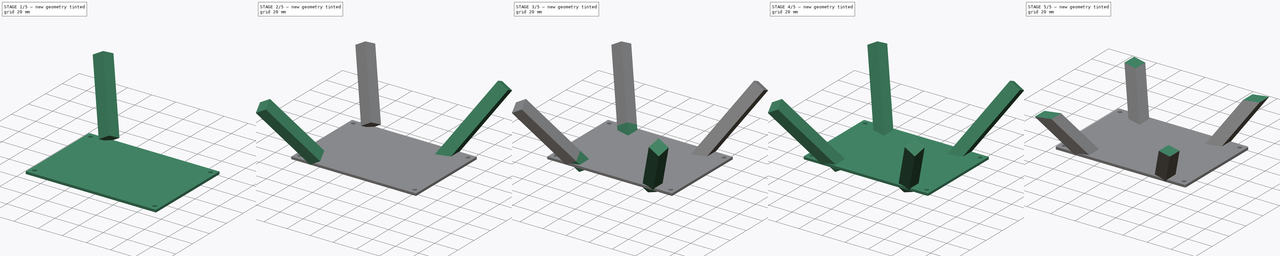
[diagram: build sequence overview — one tinted view per stage of 5, left to right]
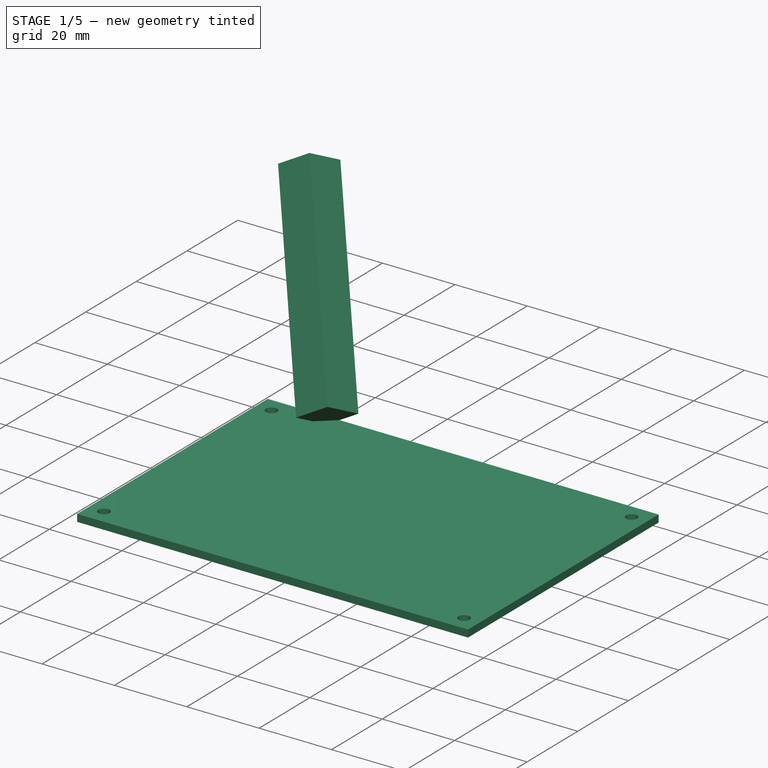
[diagram: stage 1 of 5 — iso view after this stage's code; geometry added in this stage tinted green]
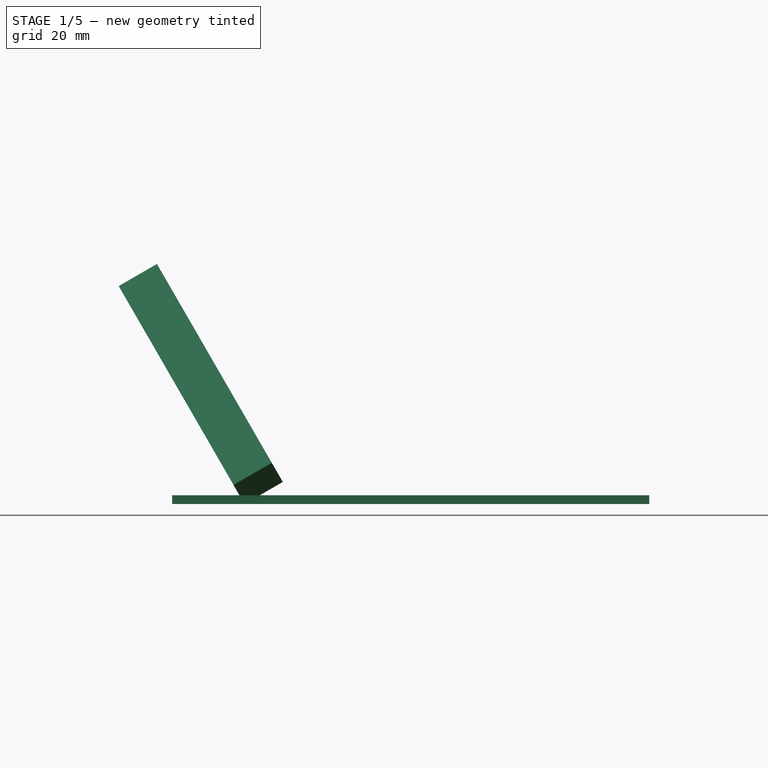
[diagram: stage 1 of 5 — front view after this stage's code; geometry added in this stage tinted green]
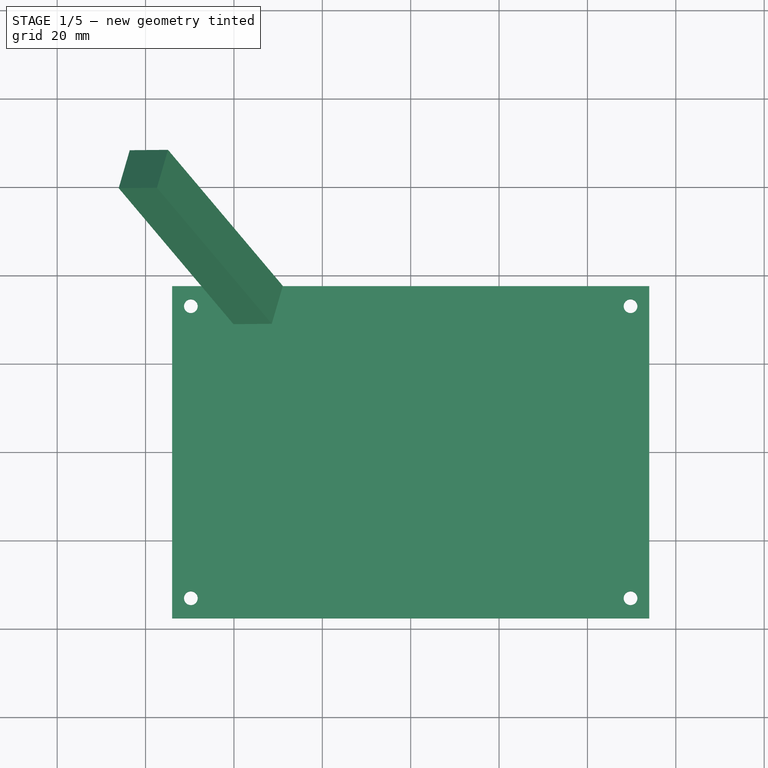
[diagram: stage 1 of 5 — top view after this stage's code; geometry added in this stage tinted green]
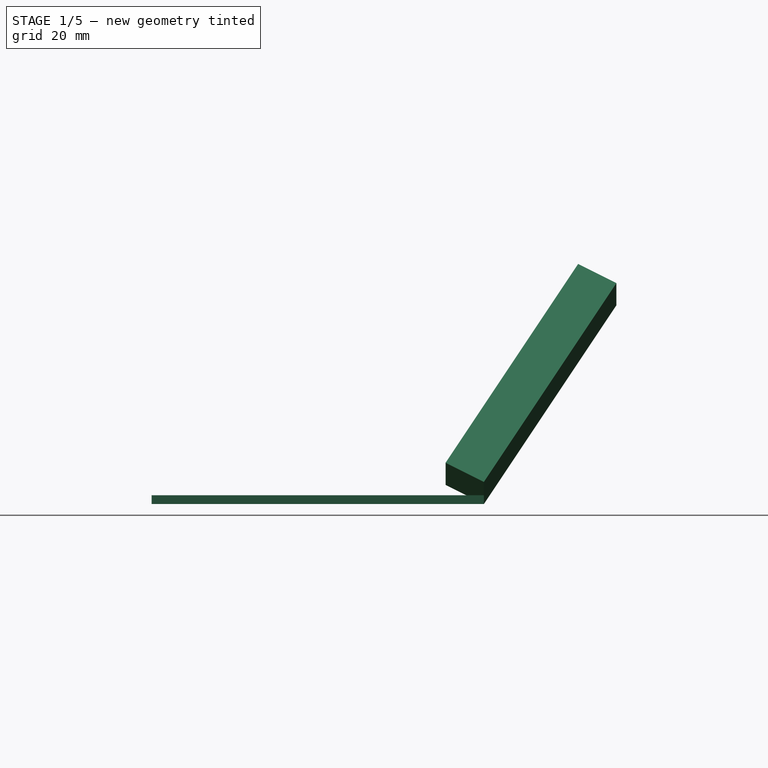
[diagram: stage 1 of 5 — right view after this stage's code; geometry added in this stage tinted green]
FCSTD DOCUMENT  (FreeCAD 0.19R24267 +99 (Git))
Label: LowerPiMount
License: All rights reserved
LicenseURL: http://en.wikipedia.org/wiki/All_rights_reserved
objects: PartDesign::Pad×7, Sketcher::SketchObject×4, PartDesign::Fillet×4, PartDesign::Mirrored×2, PartDesign::SubtractiveBox×2, Spreadsheet::Sheet×1, PartDesign::Pocket×1, PartDesign::Body×1
note: 35 computed .brp shape members not serialized (recipe doc carries the construction recipe); baked Part::Feature solids carry a one-line shape summary decoded from their .brp

FEATURE [Spreadsheet::Sheet] Spreadsheet
  cells = A2=lengthout; B2(lengthout)=108; A3=widthout; B3(widthout)=75.2; A4=widthin; B4(widthin)=57; A5=lenghtin; B5(lenghtin)=91; A7=baseheight; B7(baseheight)=2; A8=screwholes; B8(screwholes)=3.1; A10=support; B10(support)=10; A11=heightsupport; B11(heightsupport)=30; A12=anglesupport; B12(anglesupport)=30
FEATURE [Sketcher::SketchObject] Sketch
  FullyConstrained = true
  MapMode = 5
  Support = -> [XY_Plane]
  expr: Constraints[11] = Spreadsheet.lengthout / 2
  expr: Constraints[10] = Spreadsheet.widthout / 2
  expr: Constraints[9] = Spreadsheet.widthout
  expr: Constraints[8] = Spreadsheet.lengthout
  sketch-geometry (4):
    g0: LineSegment StartX=-54 StartY=37.6 StartZ=0 EndX=54 EndY=37.6 EndZ=0
    g1: LineSegment StartX=54 StartY=37.6 StartZ=0 EndX=54 EndY=-37.6 EndZ=0
    g2: LineSegment StartX=54 StartY=-37.6 StartZ=0 EndX=-54 EndY=-37.6 EndZ=0
    g3: LineSegment StartX=-54 StartY=-37.6 StartZ=0 EndX=-54 EndY=37.6 EndZ=0
  constraints (12):
    c: Coincident(g0,g1)
    c: Coincident(g1,g2)
    c: Coincident(g2,g3)
    c: Coincident(g3,g0)
    c: Horizontal(g0)
    c: Horizontal(g2)
    c: Vertical(g1)
    c: Vertical(g3)
    c: DistanceX(g0,g0) = 108
    c: DistanceY(g3,g3) = 75.2
    c: DistanceY(g2,g-1) = 37.6
    c: DistanceX(g0,g-1) = 54
FEATURE [PartDesign::Pad] Pad
  Direction = (1,1,1)
  Length = 2
  Length2 = 100
  Profile = -> Sketch
  Type = 0
  expr: Length = Spreadsheet.baseheight
FEATURE [Sketcher::SketchObject] Sketch001
  FullyConstrained = true
  MapMode = 5
  Placement = pos=(0,0,2) rot=(0,0,1;0rad)
  Support = -> [Pad]
  expr: Constraints[11] = Spreadsheet.widthin / 2 + (Spreadsheet.widthout - Spreadsheet.widthin) / 4
  expr: Constraints[9] = Spreadsheet.widthin / 2 + (Spreadsheet.widthout - Spreadsheet.widthin) / 4
  expr: Constraints[8] = Spreadsheet.widthin / 2 + (Spreadsheet.widthout - Spreadsheet.widthin) / 4
  expr: Constraints[7] = Spreadsheet.lenghtin / 2 + (Spreadsheet.lengthout - Spreadsheet.lenghtin) / 4
  expr: Constraints[6] = Spreadsheet.lenghtin / 2 + (Spreadsheet.lengthout - Spreadsheet.lenghtin) / 4
  expr: Constraints[4] = Spreadsheet.lenghtin / 2 + (Spreadsheet.lengthout - Spreadsheet.lenghtin) / 4
  expr: Constraints[3] = Spreadsheet.screwholes / 2
  expr: Constraints[10] = Spreadsheet.widthin / 2 + (Spreadsheet.widthout - Spreadsheet.widthin) / 4
  expr: Constraints[5] = Spreadsheet.lenghtin / 2 + (Spreadsheet.lengthout - Spreadsheet.lenghtin) / 4
  expr: Constraints[2] = Spreadsheet.screwholes / 2
  expr: Constraints[1] = Spreadsheet.screwholes / 2
  expr: Constraints[0] = Spreadsheet.screwholes / 2
  sketch-geometry (4):
    g0: Circle CenterX=-49.75 CenterY=33.05 CenterZ=0 NormalX=0 NormalY=0 NormalZ=1 AngleXU=0 Radius=1.55
    g1: Circle CenterX=49.75 CenterY=33.05 CenterZ=0 NormalX=0 NormalY=0 NormalZ=1 AngleXU=0 Radius=1.55
    g2: Circle CenterX=49.75 CenterY=-33.05 CenterZ=0 NormalX=0 NormalY=0 NormalZ=1 AngleXU=0 Radius=1.55
    g3: Circle CenterX=-49.75 CenterY=-33.05 CenterZ=0 NormalX=0 NormalY=0 NormalZ=1 AngleXU=0 Radius=1.55
  constraints (12):
    c: Radius(g1) = 1.55
    c: Radius(g2) = 1.55
    c: Radius(g3) = 1.55
    c: Radius(g0) = 1.55
    c: DistanceX(g-1,g1) = 49.75
    c: DistanceX(g-1,g2) = 49.75
    c: DistanceX(g3,g-1) = 49.75
    c: DistanceX(g0,g-1) = 49.75
    c: DistanceY(g-1,g0) = 33.05
    c: DistanceY(g-1,g1) = 33.05
    c: DistanceY(g2,g-1) = 33.05
    c: DistanceY(g3,g-1) = 33.05
FEATURE [PartDesign::Pocket] Pocket
  BaseFeature = -> Pad
  Length = 2
  Length2 = 100
  Profile = -> Sketch001
  Type = 0
  expr: Length = Spreadsheet.baseheight
FEATURE [Sketcher::SketchObject] Sketch002
  AttachmentOffset = pos=(-14.4374,5.03744,33.0813) rot=(-0.694747,-0.694747,-0.186157;0.7362rad)
  FullyConstrained = true
  MapMode = 5
  Placement = pos=(-14.4374,5.03744,35.0813) rot=(-0.694747,-0.694747,-0.186157;0.7362rad)
  Support = -> [Pocket]
  expr: Constraints[8] = Spreadsheet.widthout / 2
  expr: Constraints[9] = Spreadsheet.widthout / 2
  expr: Constraints[10] = Spreadsheet.support
  expr: Constraints[11] = Spreadsheet.support
  expr: .AttachmentOffset.Rotation.Roll = -Spreadsheet.anglesupport
  expr: .AttachmentOffset.Rotation.Pitch = -Spreadsheet.anglesupport
  sketch-geometry (4):
    g0: LineSegment StartX=-37.6 StartY=37.6 StartZ=0 EndX=-27.6 EndY=37.6 EndZ=0
    g1: LineSegment StartX=-27.6 StartY=37.6 StartZ=0 EndX=-27.6 EndY=27.6 EndZ=0
    g2: LineSegment StartX=-27.6 StartY=27.6 StartZ=0 EndX=-37.6 EndY=27.6 EndZ=0
    g3: LineSegment StartX=-37.6 StartY=27.6 StartZ=0 EndX=-37.6 EndY=37.6 EndZ=0
  constraints (12):
    c: Coincident(g0,g1)
    c: Coincident(g1,g2)
    c: Coincident(g2,g3)
    c: Coincident(g3,g0)
    c: Horizontal(g0)
    c: Horizontal(g2)
    c: Vertical(g1)
    c: Vertical(g3)
    c: DistanceX(g0,g-1) = 37.6
    c: DistanceY(g-1,g0) = 37.6
    c: DistanceX(g0,g0) = 10
    c: DistanceY(g1,g1) = 10
FEATURE [PartDesign::Pad] Pad001
  BaseFeature = -> Pocket
  Direction = (1,1,1)
  Length = 60
  Length2 = 100
  Profile = -> Sketch002
  Type = 0
  expr: Length = Spreadsheet.heightsupport * 2
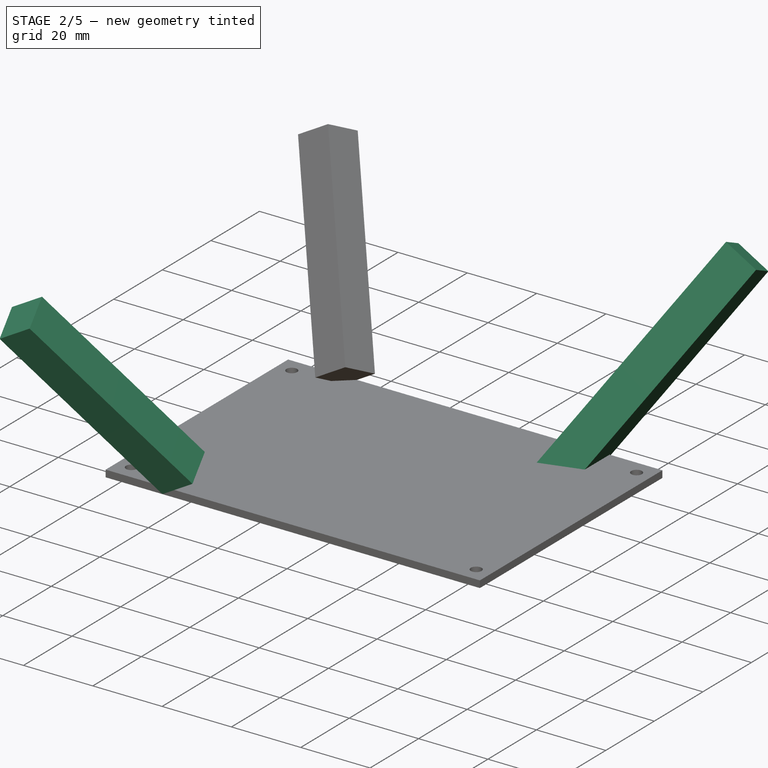
[diagram: stage 2 of 5 — iso view after this stage's code; geometry added in this stage tinted green]
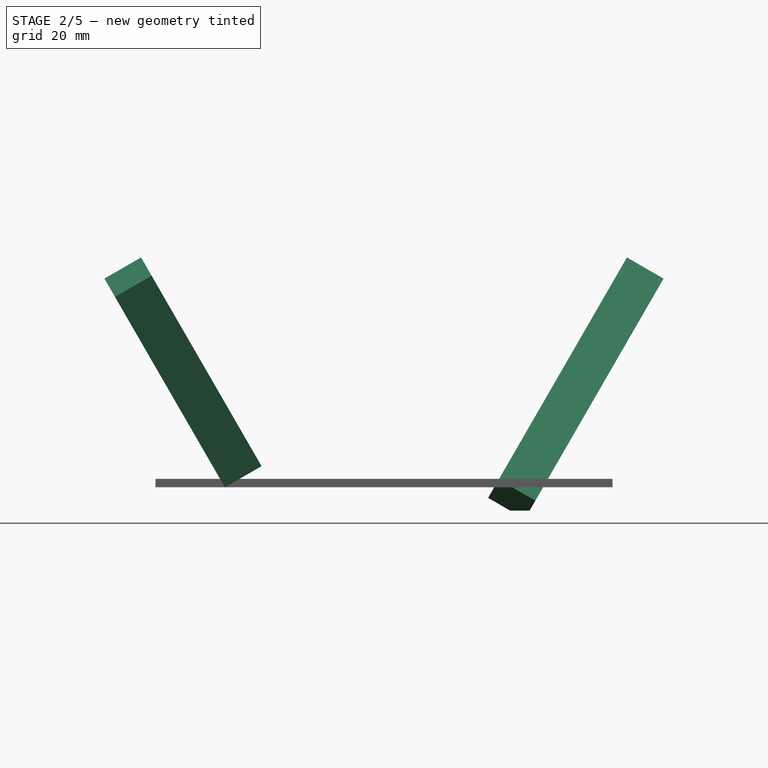
[diagram: stage 2 of 5 — front view after this stage's code; geometry added in this stage tinted green]
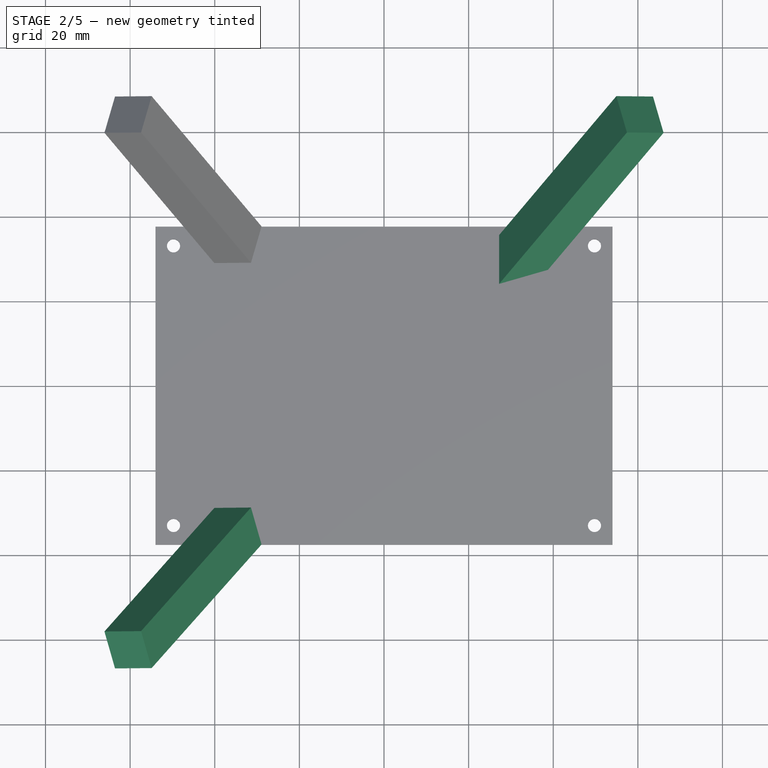
[diagram: stage 2 of 5 — top view after this stage's code; geometry added in this stage tinted green]
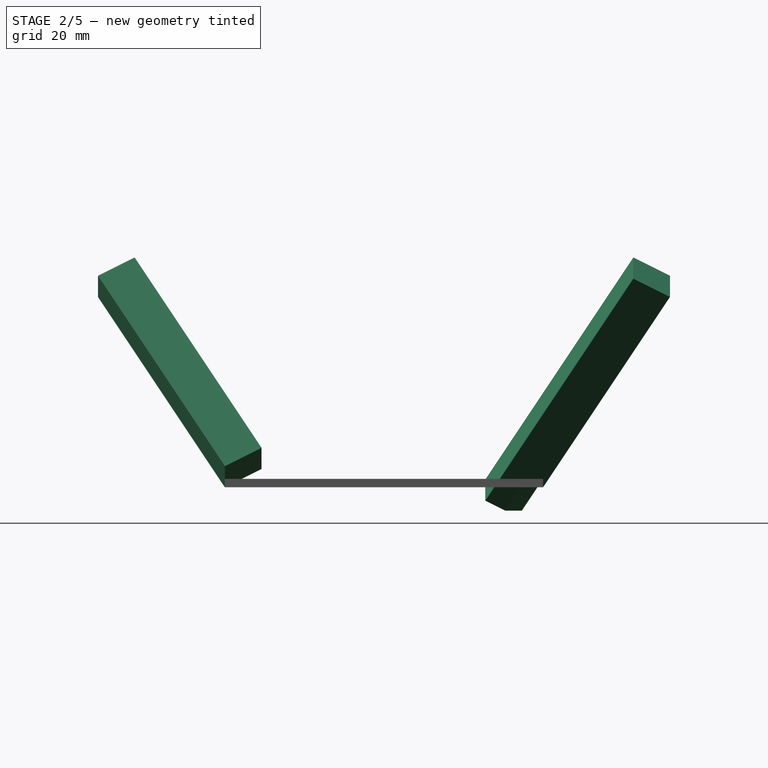
[diagram: stage 2 of 5 — right view after this stage's code; geometry added in this stage tinted green]
FEATURE [PartDesign::Mirrored] Mirrored
  BaseFeature = -> Pad001
  MirrorPlane = -> YZ_Plane
  Originals = -> [Pad001]
FEATURE [PartDesign::Mirrored] Mirrored001
  BaseFeature = -> Mirrored
  MirrorPlane = -> XZ_Plane
  Originals = -> [Pad001]
FEATURE [PartDesign::Pad] Pad002
  BaseFeature = -> Mirrored001
  Direction = (1,1,1)
  Length = 10
  Length2 = 100
  Profile = -> Mirrored001 [Face22]
  Type = 0
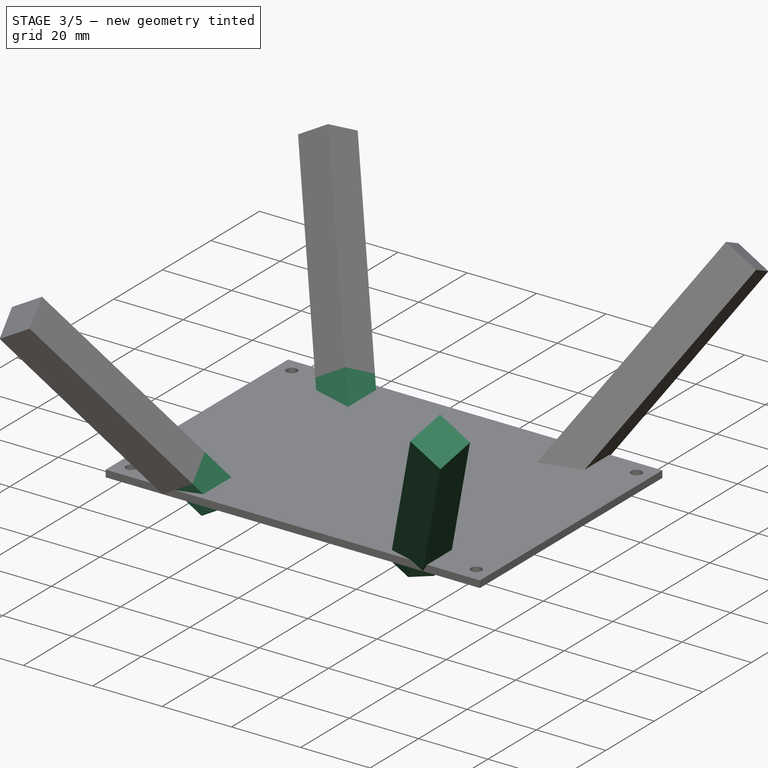
[diagram: stage 3 of 5 — iso view after this stage's code; geometry added in this stage tinted green]
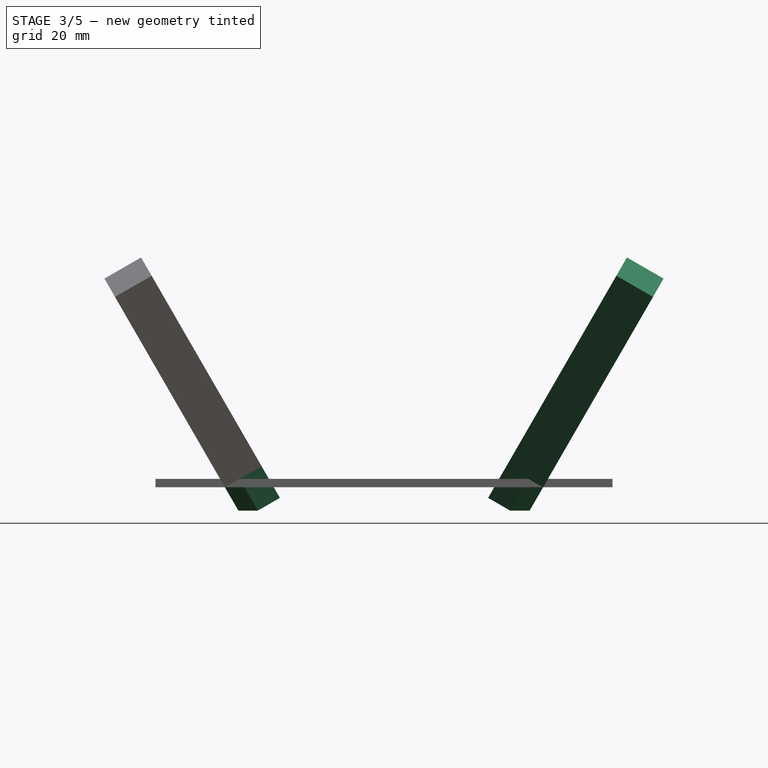
[diagram: stage 3 of 5 — front view after this stage's code; geometry added in this stage tinted green]
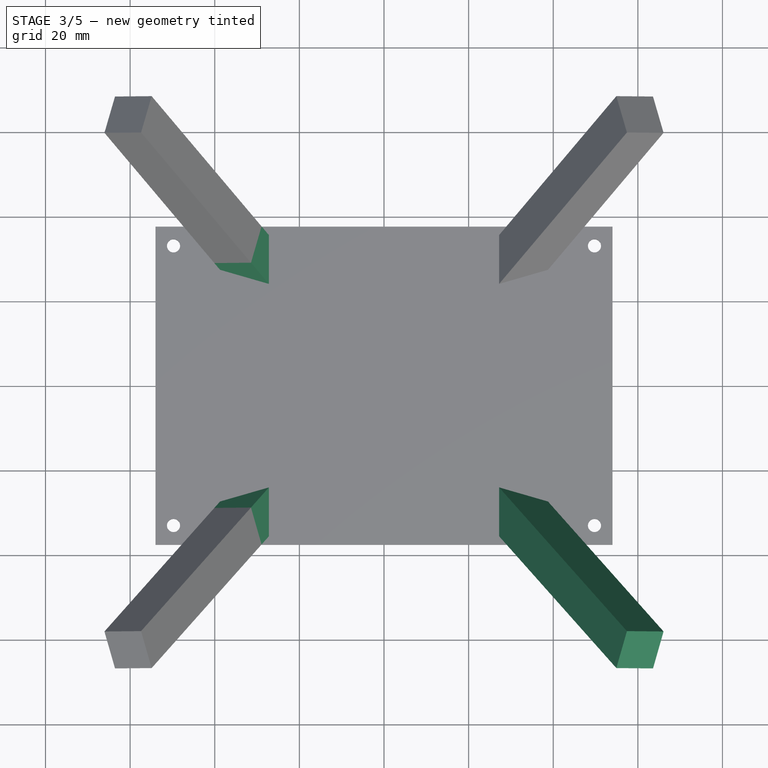
[diagram: stage 3 of 5 — top view after this stage's code; geometry added in this stage tinted green]
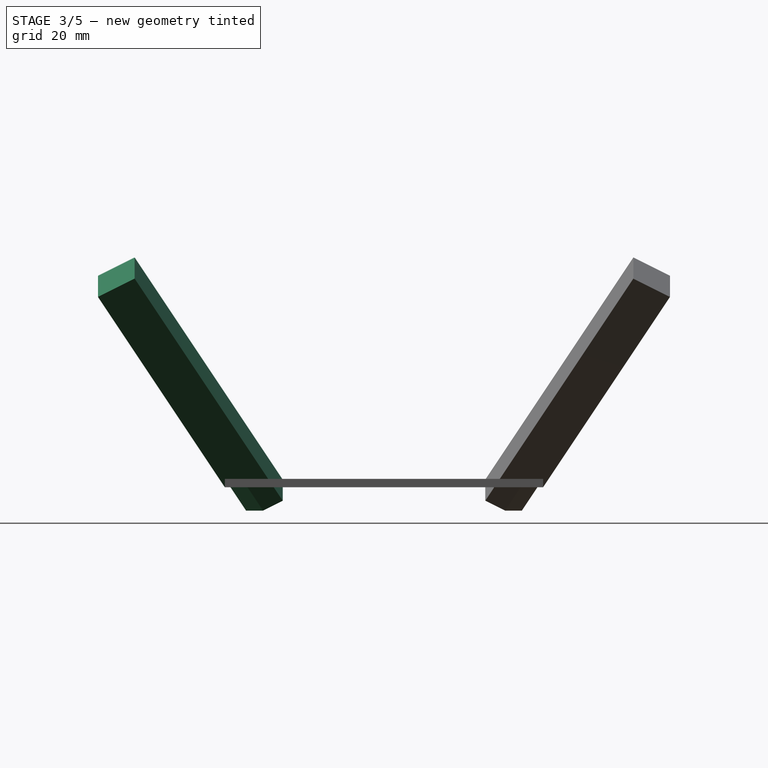
[diagram: stage 3 of 5 — right view after this stage's code; geometry added in this stage tinted green]
FEATURE [PartDesign::Pad] Pad003
  BaseFeature = -> Pad002
  Direction = (1,1,1)
  Length = 10
  Length2 = 100
  Profile = -> Pad002 [Face21]
  Type = 0
FEATURE [PartDesign::Pad] Pad004
  BaseFeature = -> Pad003
  Direction = (1,1,1)
  Length = 10
  Length2 = 100
  Profile = -> Pad003 [Face35]
  Type = 0
FEATURE [Sketcher::SketchObject] Sketch003
  AttachmentOffset = pos=(14.4374,-5.03744,33.0813) rot=(0.694747,0.694747,-0.186157;0.7362rad)
  FullyConstrained = true
  MapMode = 5
  Placement = pos=(14.4374,-5.03744,35.0813) rot=(0.694747,0.694747,-0.186157;0.7362rad)
  Support = -> [Pad004]
  expr: Constraints[8] = Spreadsheet.widthout / 2
  expr: Constraints[9] = Spreadsheet.support
  expr: Constraints[10] = Spreadsheet.widthout / 2
  expr: Constraints[11] = Spreadsheet.support
  expr: .AttachmentOffset.Rotation.Roll = Spreadsheet.anglesupport
  expr: .AttachmentOffset.Rotation.Pitch = Spreadsheet.anglesupport
  sketch-geometry (4):
    g0: LineSegment StartX=27.6 StartY=-27.6 StartZ=0 EndX=37.6 EndY=-27.6 EndZ=0
    g1: LineSegment StartX=37.6 StartY=-27.6 StartZ=0 EndX=37.6 EndY=-37.6 EndZ=0
    g2: LineSegment StartX=37.6 StartY=-37.6 StartZ=0 EndX=27.6 EndY=-37.6 EndZ=0
    g3: LineSegment StartX=27.6 StartY=-37.6 StartZ=0 EndX=27.6 EndY=-27.6 EndZ=0
  constraints (12):
    c: Coincident(g0,g1)
    c: Coincident(g1,g2)
    c: Coincident(g2,g3)
    c: Coincident(g3,g0)
    c: Horizontal(g0)
    c: Horizontal(g2)
    c: Vertical(g1)
    c: Vertical(g3)
    c: DistanceY(g1,g-1) = 37.6
    c: DistanceY(g1,g1) = 10
    c: DistanceX(g-1,g1) = 37.6
    c: DistanceX(g0,g0) = 10
FEATURE [PartDesign::Pad] Pad005
  BaseFeature = -> Pad004
  Direction = (1,1,1)
  Length = 60
  Length2 = 100
  Profile = -> Sketch003
  Type = 0
  expr: Length = Spreadsheet.heightsupport * 2
FEATURE [PartDesign::Pad] Pad006
  BaseFeature = -> Pad005
  Direction = (1,1,1)
  Length = 10
  Length2 = 100
  Profile = -> Pad005 [Face44]
  Type = 0
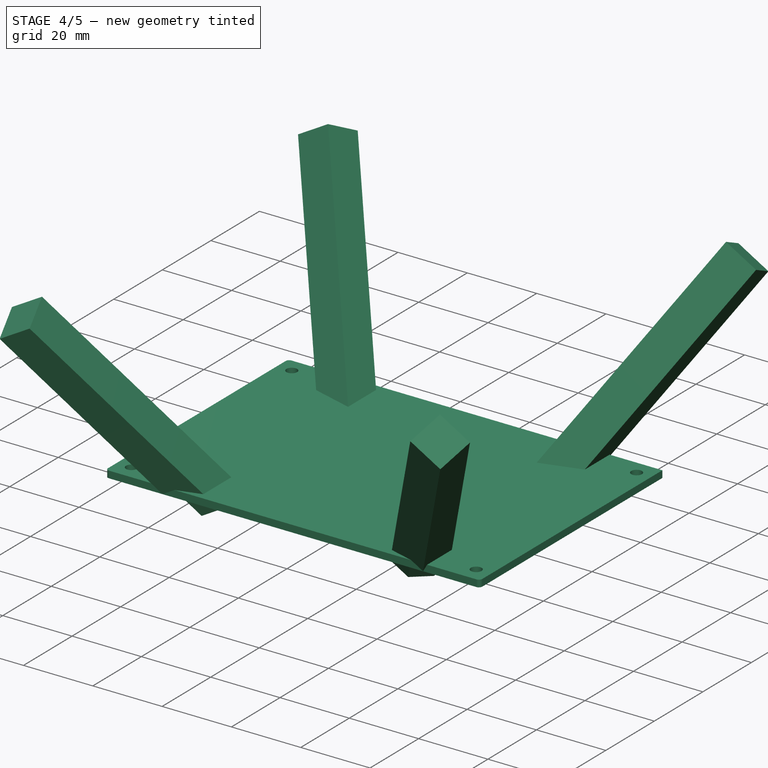
[diagram: stage 4 of 5 — iso view after this stage's code; geometry added in this stage tinted green]
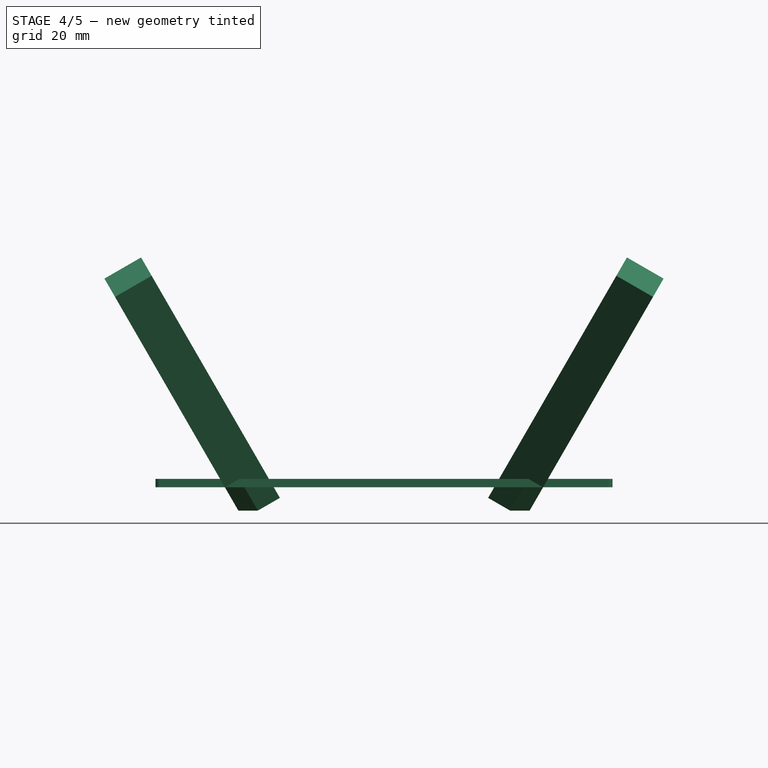
[diagram: stage 4 of 5 — front view after this stage's code; geometry added in this stage tinted green]
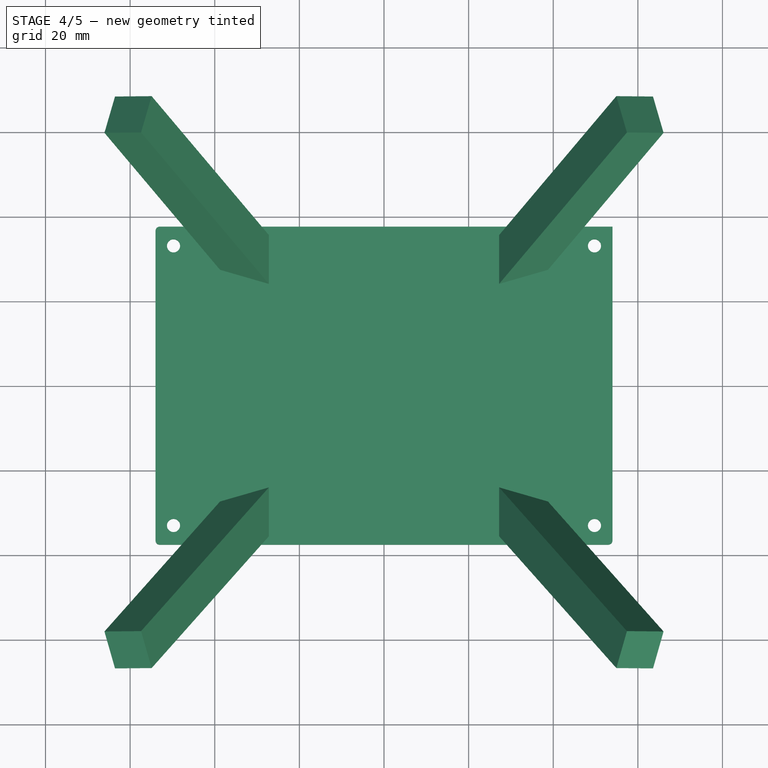
[diagram: stage 4 of 5 — top view after this stage's code; geometry added in this stage tinted green]
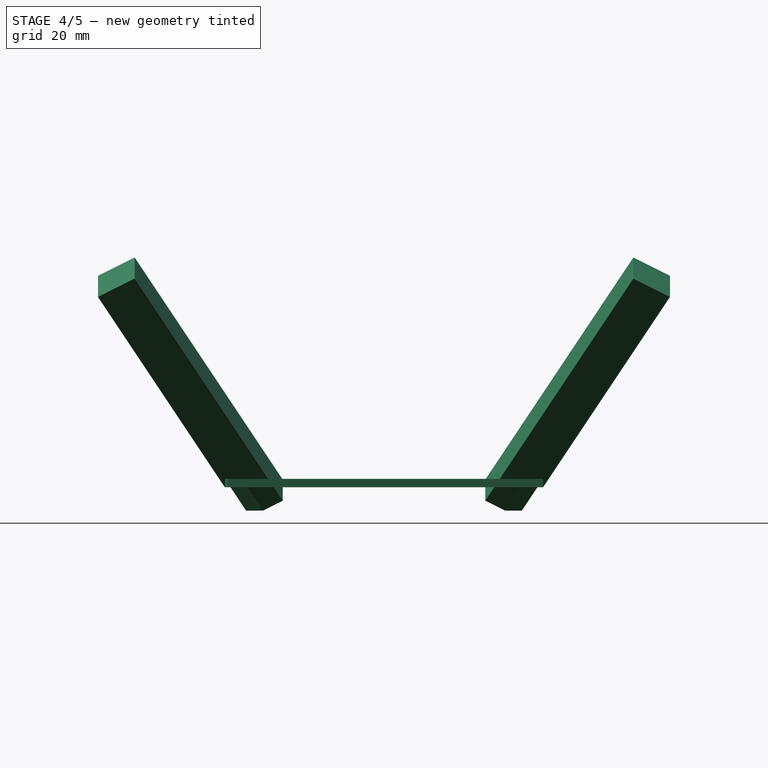
[diagram: stage 4 of 5 — right view after this stage's code; geometry added in this stage tinted green]
FEATURE [PartDesign::Fillet] Fillet
  Base = -> Pad006 [Edge75]
  BaseFeature = -> Pad006
  Radius = 1
  SupportTransform = false
FEATURE [PartDesign::Fillet] Fillet001
  Base = -> Fillet [Edge39]
  BaseFeature = -> Fillet
  Radius = 1
  SupportTransform = false
FEATURE [PartDesign::Fillet] Fillet002
  Base = -> Fillet001 [Edge61]
  BaseFeature = -> Fillet001
  Radius = 1
  SupportTransform = false
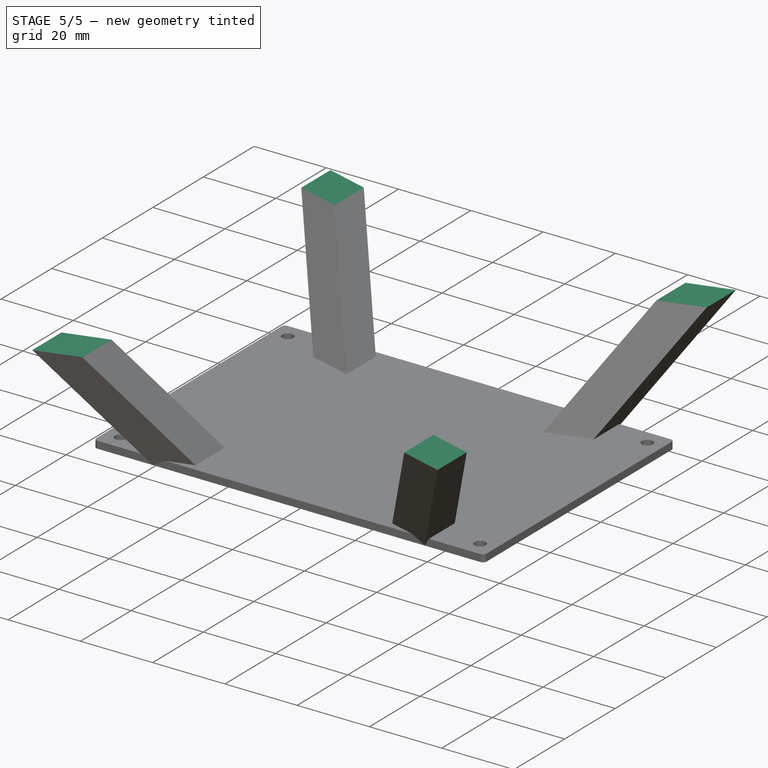
[diagram: stage 5 of 5 — iso view after this stage's code; geometry added in this stage tinted green]
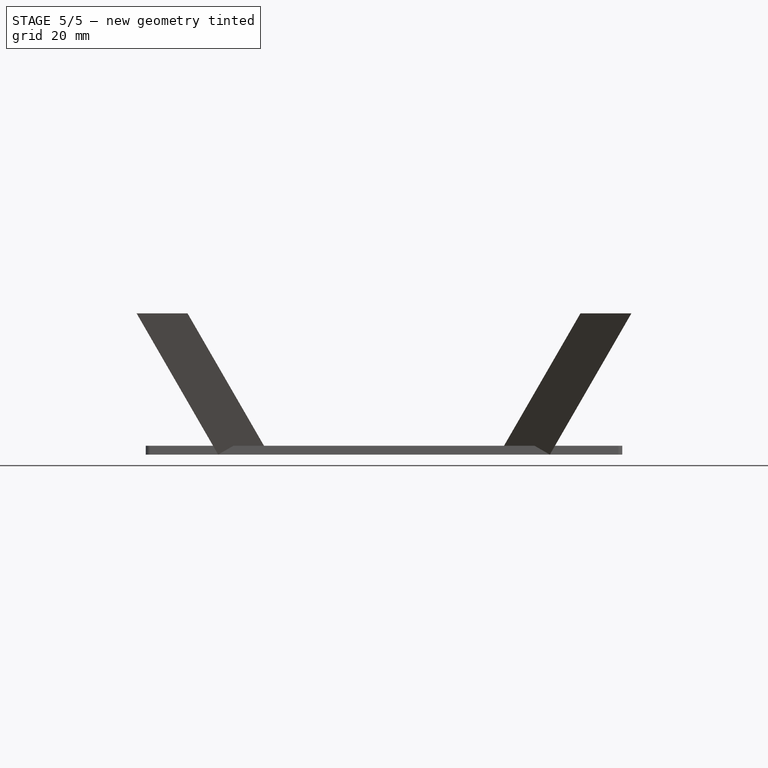
[diagram: stage 5 of 5 — front view after this stage's code; geometry added in this stage tinted green]
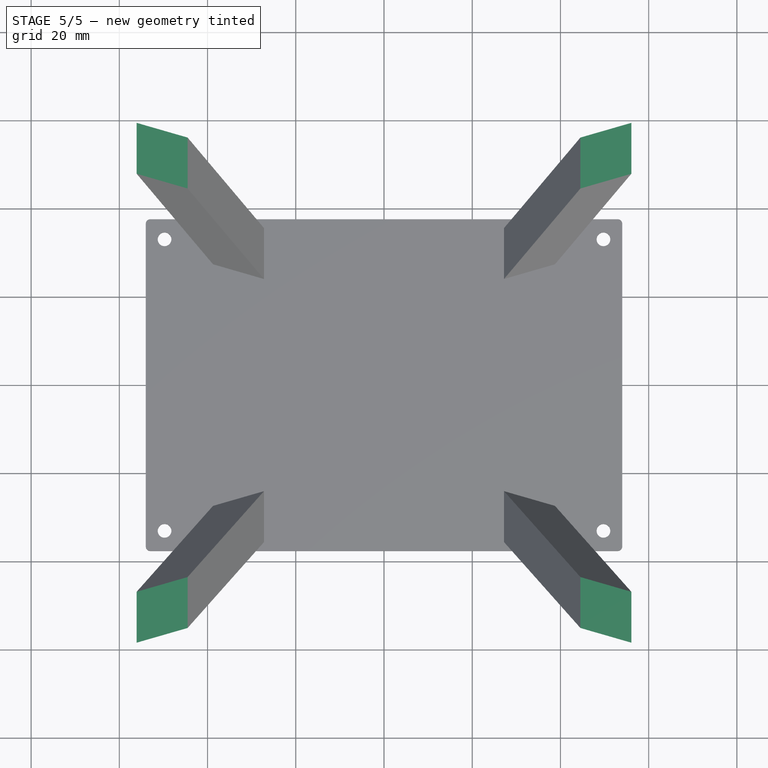
[diagram: stage 5 of 5 — top view after this stage's code; geometry added in this stage tinted green]
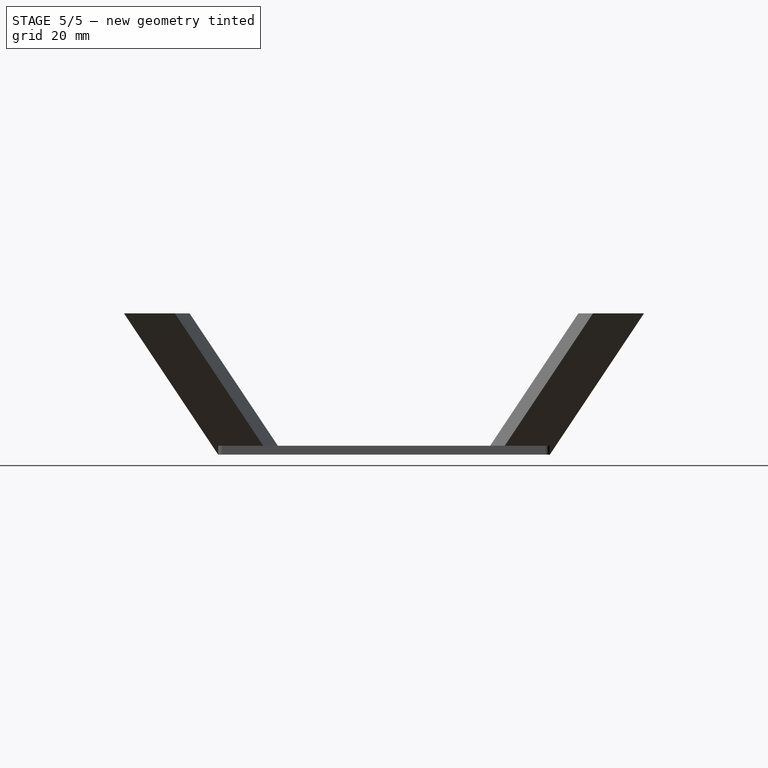
[diagram: stage 5 of 5 — right view after this stage's code; geometry added in this stage tinted green]
FEATURE [PartDesign::Fillet] Fillet003
  Base = -> Fillet002 [Edge48]
  BaseFeature = -> Fillet002
  Radius = 1
  SupportTransform = false
FEATURE [PartDesign::SubtractiveBox] Box
  AttacherType = Attacher::AttachEngine3D
  AttachmentOffset = pos=(-54,-37.6,0) rot=(0,0,1;0rad)
  BaseFeature = -> Fillet003
  Height = 10
  Length = 108
  MapMode = 5
  Placement = pos=(-54,37.6,0) rot=(1,0,0;3.14159rad)
  Support = -> [Fillet003]
  Width = 75.2
  expr: .AttachmentOffset.Base.y = -Spreadsheet.widthout / 2
  expr: .AttachmentOffset.Base.x = -Spreadsheet.lengthout / 2
  expr: Width = Spreadsheet.widthout
  expr: Length = Spreadsheet.lengthout
FEATURE [PartDesign::SubtractiveBox] Box001
  AttacherType = Attacher::AttachEngine3D
  AttachmentOffset = pos=(-54,-112.8,30) rot=(0,0,1;0rad)
  BaseFeature = -> Box
  Height = 30
  Length = 216
  MapMode = 5
  Placement = pos=(-108,-75.2,32) rot=(0,0,1;0rad)
  Support = -> [Box]
  Width = 150.4
  expr: .AttachmentOffset.Base.y = -Spreadsheet.widthout * 1.5
  expr: .AttachmentOffset.Base.x = -Spreadsheet.lengthout / 2
  expr: .AttachmentOffset.Base.z = Spreadsheet.heightsupport
  expr: Height = Spreadsheet.heightsupport
  expr: Width = Spreadsheet.widthout * 2
  expr: Length = Spreadsheet.lengthout * 2
FEATURE [PartDesign::Body] Body
  Group = -> [Sketch,Pad,Sketch001,Pocket,Sketch002,Pad001,Mirrored,Mirrored001,Pad002,Pad003,Pad004,Sketch003,Pad005,Pad006,Fillet,Fillet001,Fillet002,Fillet003,Box,Box001]
  Origin = -> Origin
  Tip = -> Box001
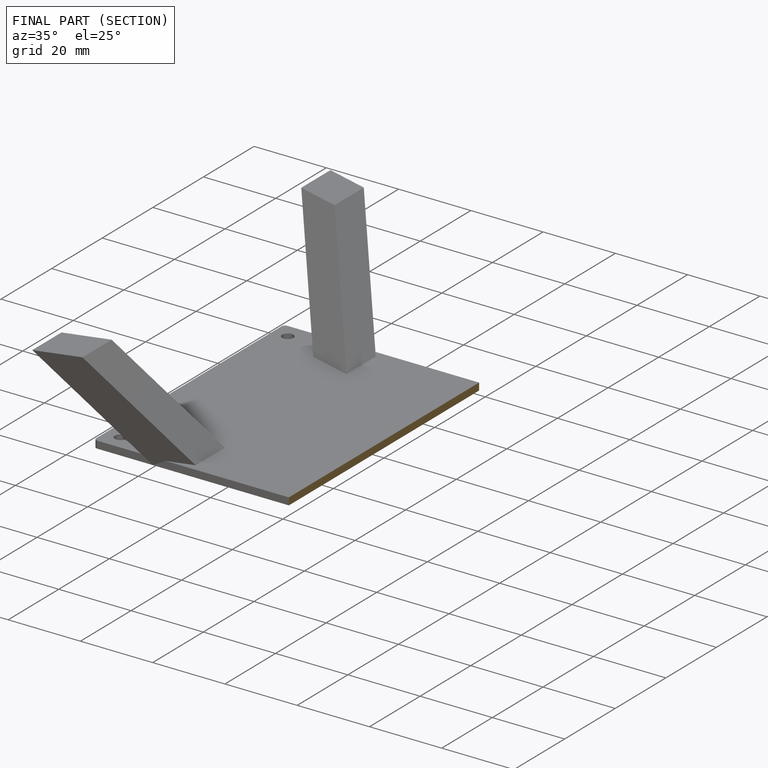
[diagram: finished part — half-section view (interior)]
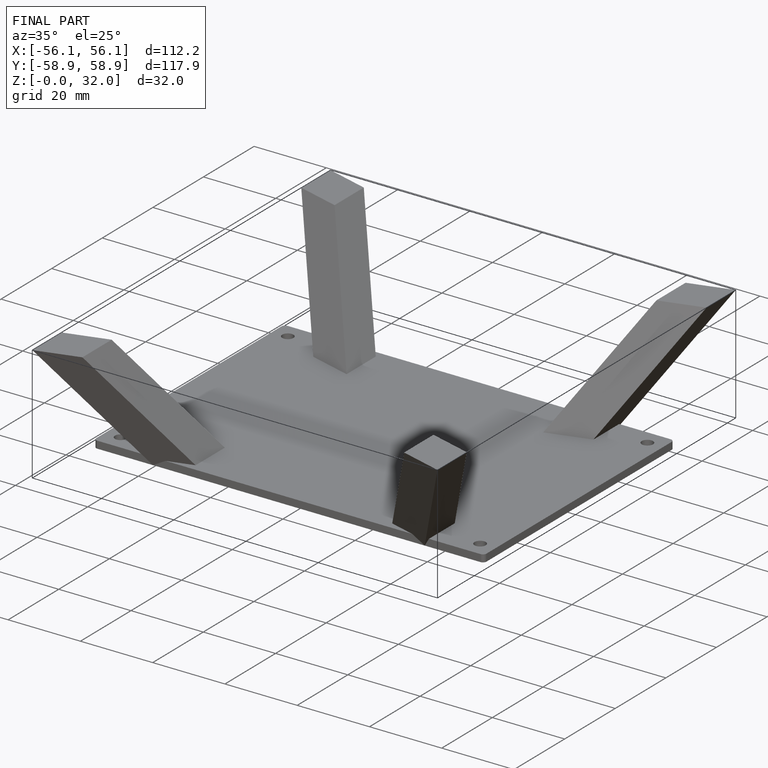
[diagram: finished part — iso view with bounding-box wireframe]
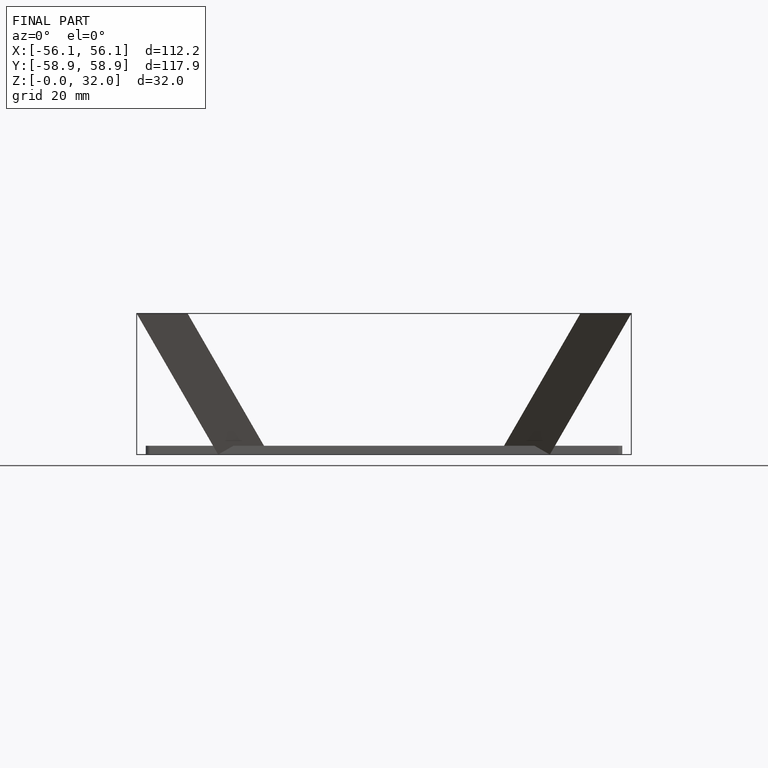
[diagram: finished part — front view with bounding-box wireframe]
